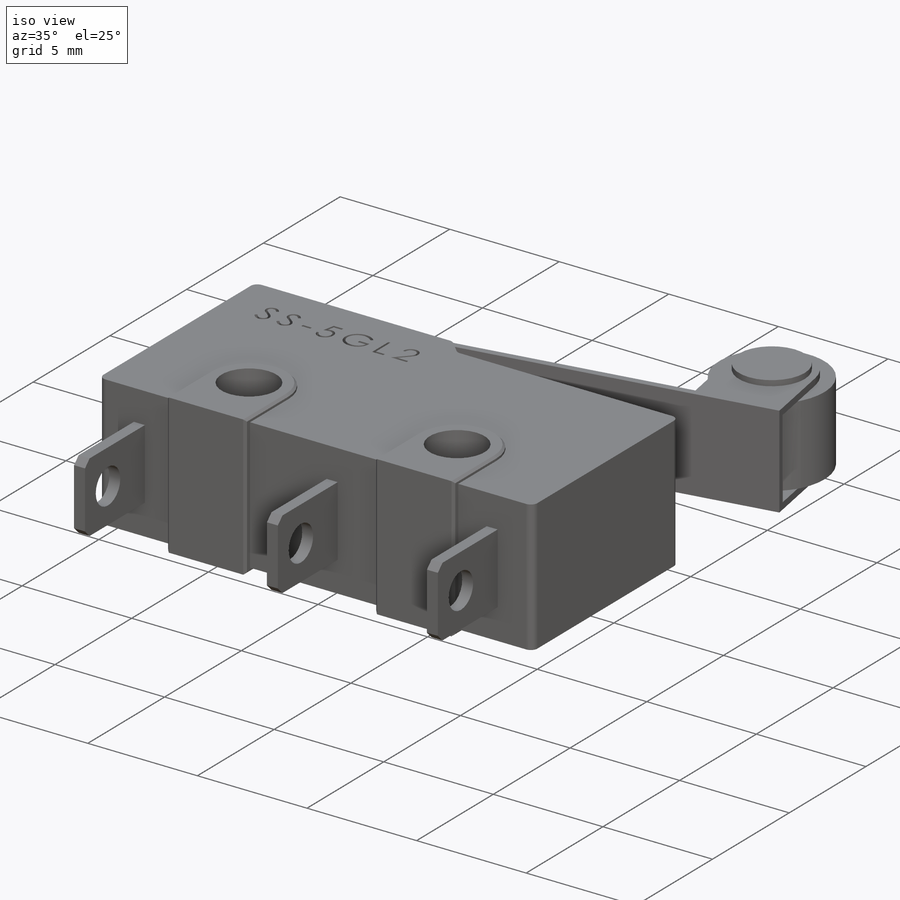
[diagram: iso view]
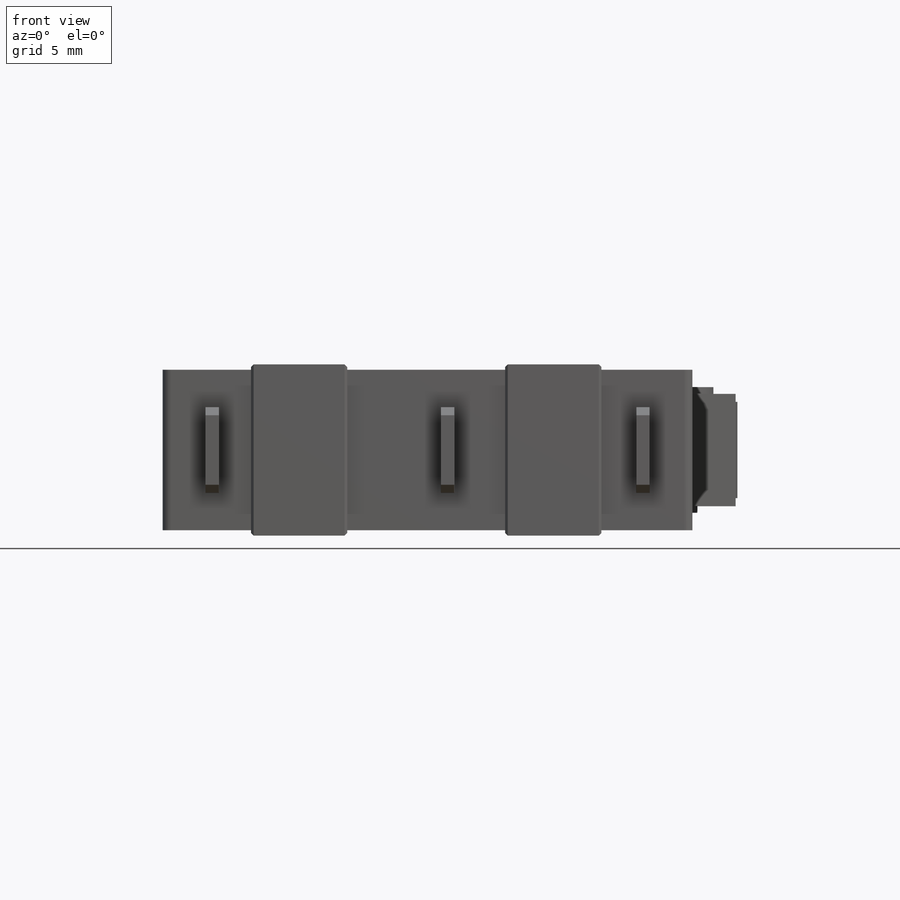
[diagram: front view]
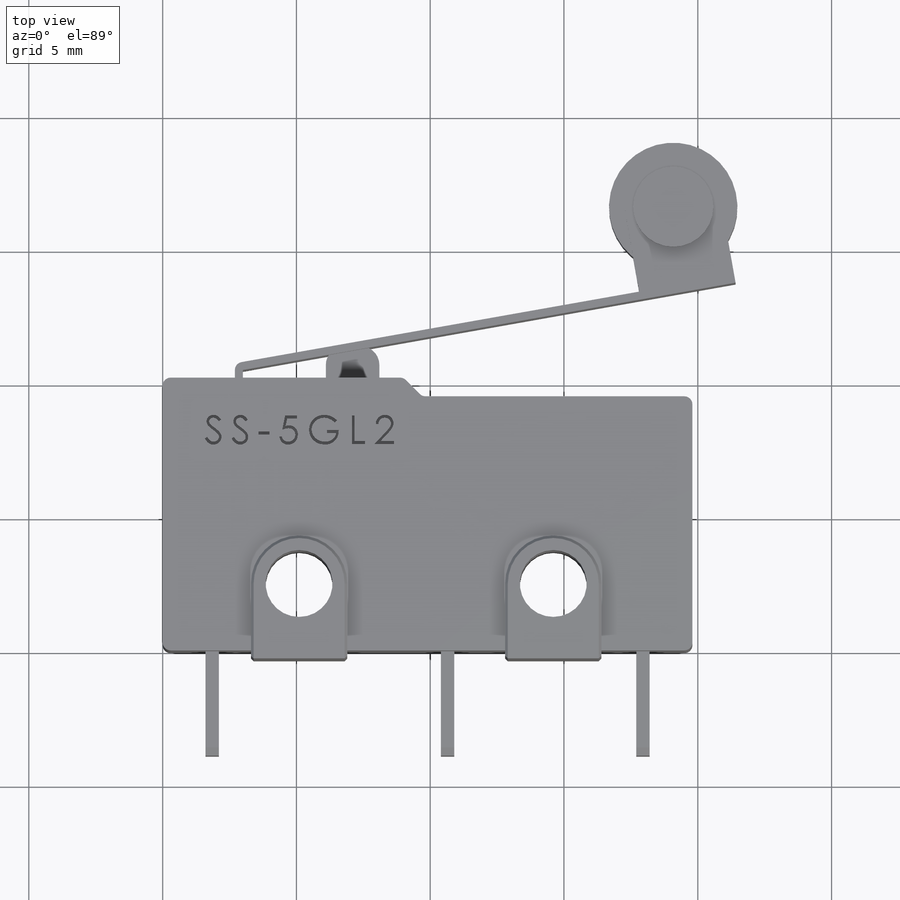
[diagram: top view]
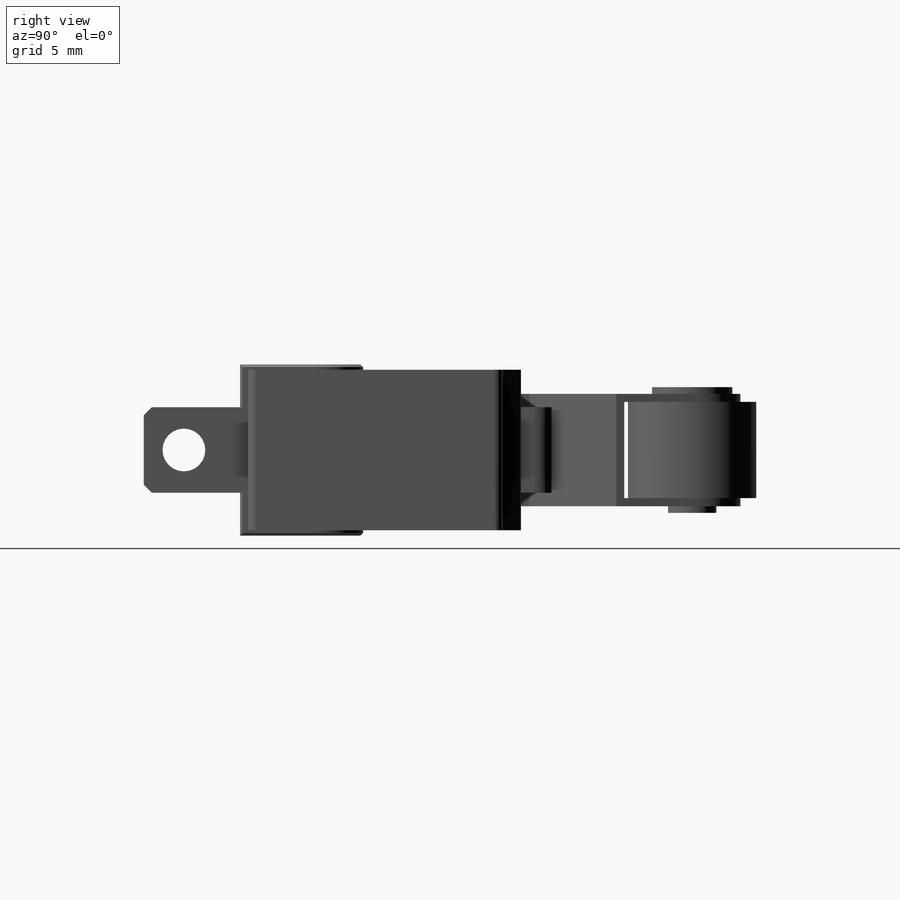
[diagram: right view]
SOLIDWORKS PART (.sldprt)
format: sldprt  version: not decoded by parser v0  size: 718,336 bytes
history: native  units: mm
features: sketch x14, extrude x10, cut_extrude x4, chamfer x3, material x1, fillet x1, plane x1 (+11 scaffold rows collapsed)
feature tree (45):
  scaffold x11  (default folders/planes/origin — collapsed)
  material  "Material <not specified>"
  sketch  "Sketch1"  dims[D6=0.3mm D1=19.8mm D2=10.2mm D3=9.5mm D4=9.0mm D5=10.1mm]
  extrude  "Base-Extrude"  Depth=6mm
  sketch  "Sketch2"  dims[c1.D1=2.5mm c1.D2=2.5mm c1.D3=2.5mm c2.D1=2.5mm c2.D2=1.175mm c2.D3=1.175mm c3.D2=2.5mm c3.D3=2.5mm c3.D4=2.5mm c4.D2=9.5mm c4.D3=7.0mm c5.D2=2.5mm c5.D3=2.5mm c5.D4=9.5mm c5.D5=5.1mm c6.D2=5.1mm c6.D3=9.5mm c6.D4=2.5mm]
  cut_extrude  "Cut-Extrude1"  [1 undecoded]
  sketch  "Sketch3"  dims[D1=3.6mm]
  extrude  "Boss-Extrude1"  Depth=0.2mm
  sketch  "Sketch4"  dims[D1=0.0mm D2=0.0mm]
  extrude  "Boss-Extrude2"  Depth=0.2mm
  chamfer  "Chamfer1"  Distance=0.1mm Angle=45deg
  sketch  "Sketch5"  dims[c1.D1=3.2mm c1.D2=7.1mm c1.D3=2.0mm c2.D2=7.1mm]
  extrude  "Boss-Extrude3"  Depth=11.4mm
  fillet  "Fillet1"  Radius=0.7mm
  sketch  "Sketch6"  dims[c1.D1=3.2mm c1.D2=0.5mm c1.D3=0.5mm c1.D4=0.5mm c1.D5=1.6mm c1.D6=1.6mm c1.D7=7.8mm c2.D5=8.8mm c2.D7=7.3mm]
  extrude  "Boss-Extrude4"  Depth=3.9mm
  chamfer  "Chamfer2"  Distance=0.3mm Angle=45deg
  sketch  "Sketch7"  dims[D1=1.6mm D2=0.7mm]
  cut_extrude  "Cut-Extrude2"  [1 undecoded]
  sketch  "Sketch8"  dims[D1=0.0mm]
  extrude  "Boss-Extrude5"  Depth=0.3mm
  chamfer  "Chamfer3"  Distance=0.1mm Angle=45deg
  plane  "Plane1"  Offset=3mm
  sketch  "Sketch11"  dims[c1.D1=0.3mm c1.D3=0.3mm c1.D8=1.8mm c1.D9=1.8mm c2.D3=0.6mm c2.D4=16.6mm c2.D5=2.7mm c2.D6=16.3mm c3.D6=11.0deg c3.D4=18.7mm c3.D7=3.6mm c3.D8=5.0mm c3.D9=~18.207937mm c4.D6=18.7mm c4.D2=0.3mm]
  extrude  "Boss-Extrude6"  Depth=2.1mm
  sketch  "Sketch12"
  cut_extrude  "Cut-Extrude3"  Depth=0.3mm
  sketch  "Sketch13"  dims[D1=3.0mm]
  extrude  "Extrude1"  Depth=0.25mm
  sketch  "Sketch14"  dims[D1=1.8mm]
  extrude  "Extrude2"  Depth=0.25mm
  sketch  "Sketch15"  dims[D1=0.3mm]
  cut_extrude  "Cut-Extrude4"  [1 undecoded]
  sketch  "Sketch16"  dims[D1=4.8mm]
  extrude  "Extrude3"  [1 undecoded]
decode coverage: 27 of 32 modeling features carry decoded parameters
note: ~ marks probable driven/reference dimensions
note: 4 parameter values undecoded
summary: no parameter record found for 4 features
note: suppression state not decoded; provenance and decode notes live in map.json
